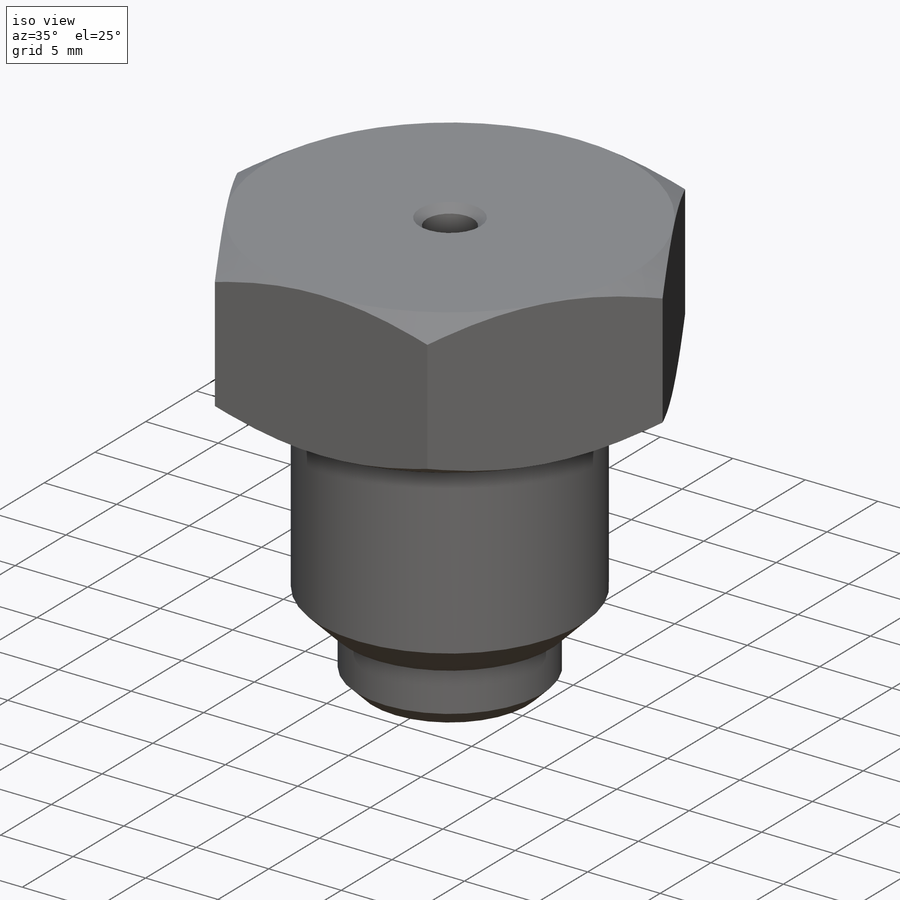
[diagram: iso view]
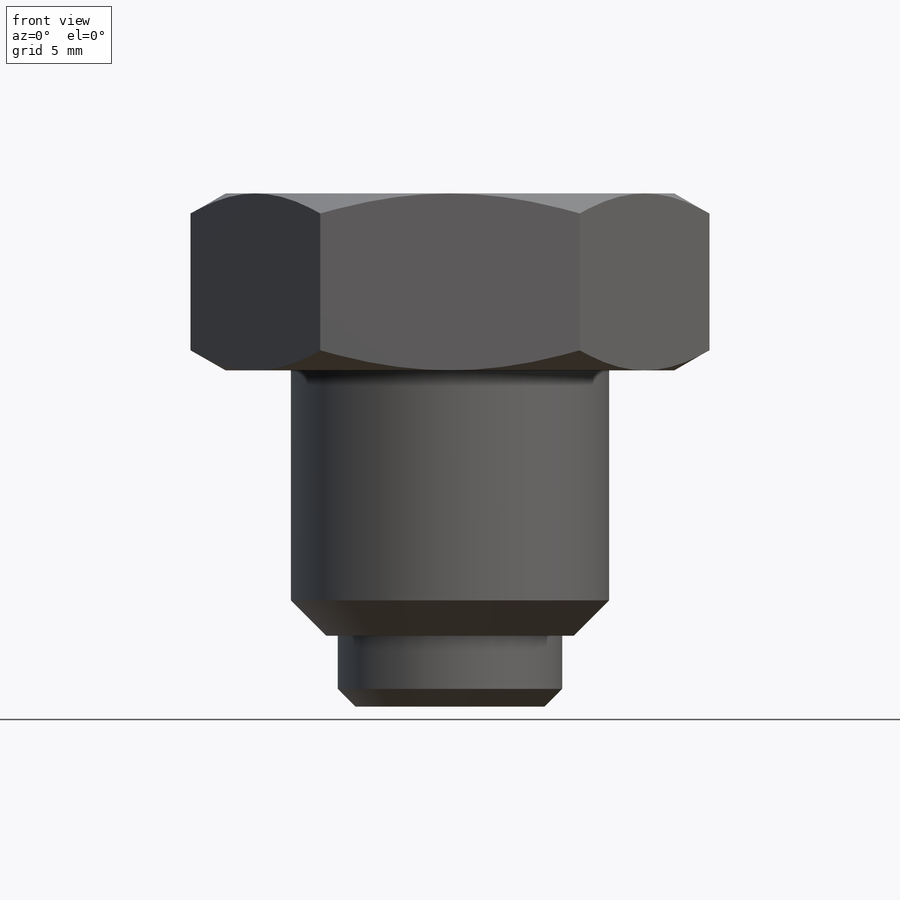
[diagram: front view]
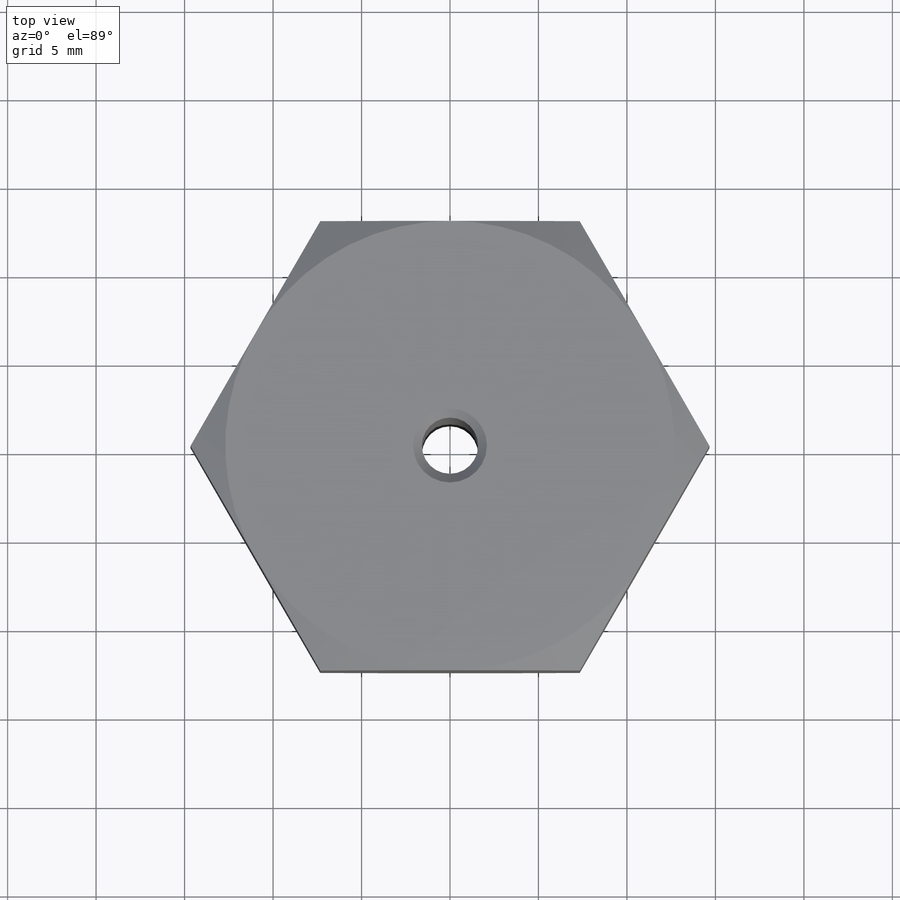
[diagram: top view]
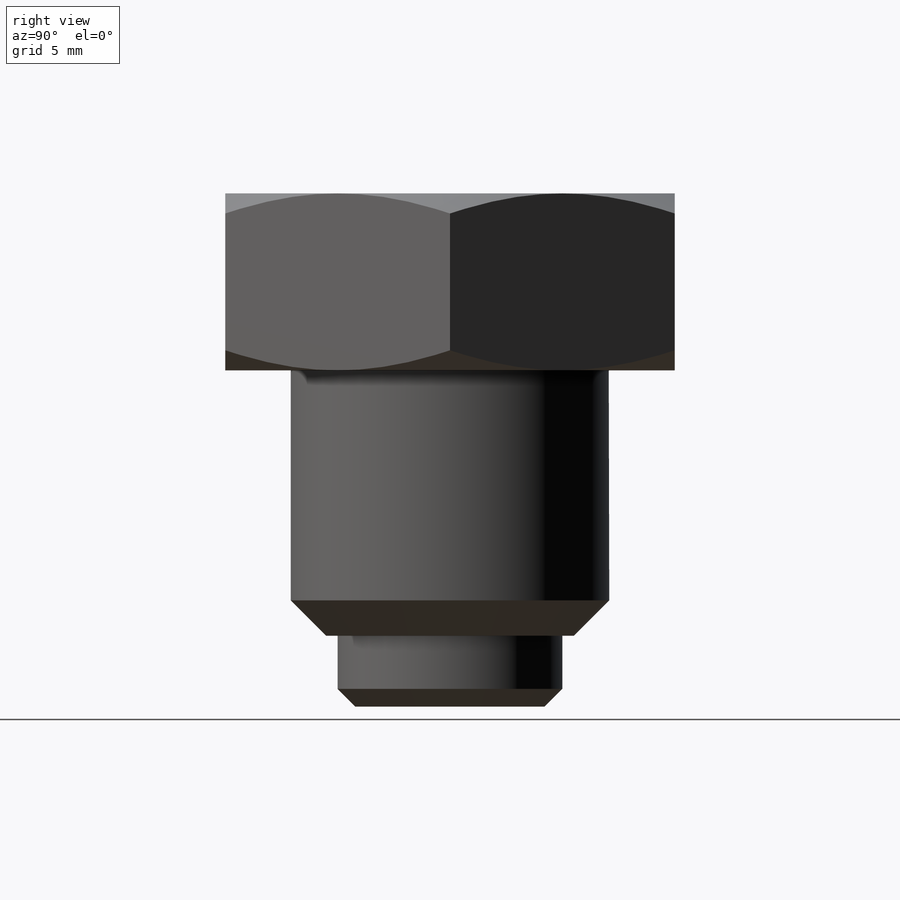
[diagram: right view]
SOLIDWORKS PART (.sldprt)
format: sldprt  version: not decoded by parser v0  size: 225,280 bytes
history: native  units: mm
features: sketch x7, cut_extrude x4, plane x3, extrude x3, chamfer x3, material x1 (+10 scaffold rows collapsed)
feature tree (31):
  scaffold x10  (default folders/planes/origin — collapsed)
  material  "Material <sin especificar>"
  plane  "Alzado"
  plane  "Planta"
  plane  "Vista lateral"
  sketch  "Croquis1"  dims[D1=25.4mm]
  extrude  "Saliente-Extruir3"  Depth=10mm
  sketch  "Croquis5"
  cut_extrude  "Cortar-Extruir4"  Depth=10mm
  sketch  "Croquis6"
  cut_extrude  "Cortar-Extruir5"  Depth=10mm
  sketch  "Croquis7"  dims[D1=18.0mm]
  extrude  "Saliente-Extruir4"  Depth=15mm
  chamfer  "Chaflán1"  Distance=2mm Angle=45deg
  sketch  "Croquis8"  dims[3.175=3.175mm]
  cut_extrude  "Cortar-Extruir6"  Depth=26mm
  chamfer  "Chaflán2"  Distance=0.5mm Angle=45deg
  sketch  "Croquis9"  dims[D1=12.7mm]
  extrude  "Saliente-Extruir5"  Depth=4mm
  chamfer  "Chaflán4"  Distance=1mm Angle=45deg
  sketch  "Croquis10"  dims[D1=3.175mm]
  cut_extrude  "Cortar-Extruir7"  Depth=14mm
decode coverage: 15 of 17 modeling features carry decoded parameters
note: suppression state not decoded; provenance and decode notes live in map.json
